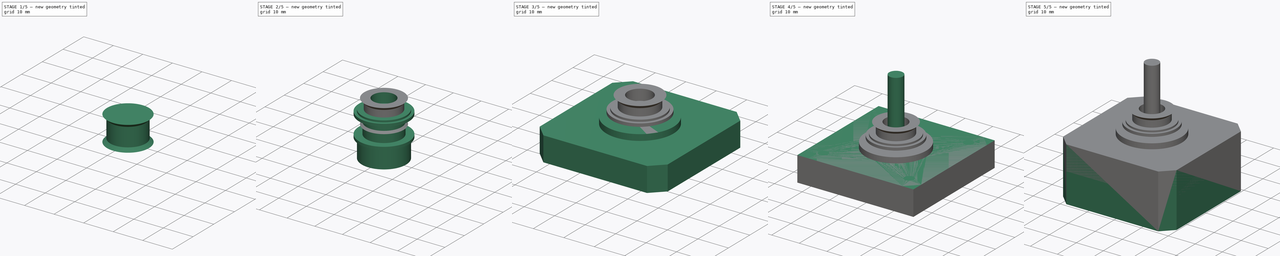
[diagram: build sequence overview — one tinted view per stage of 5, left to right]
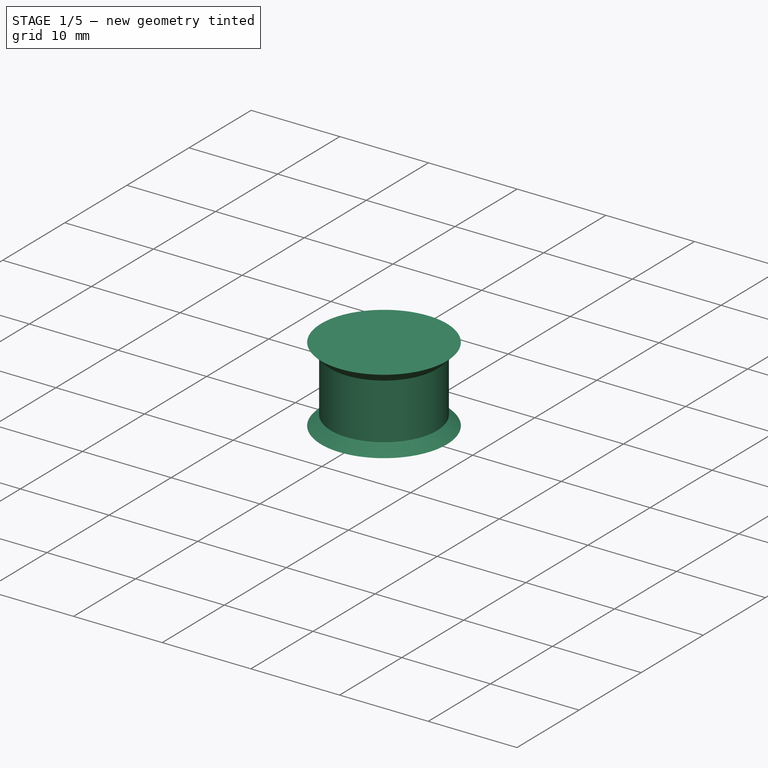
[diagram: stage 1 of 5 — iso view after this stage's code; geometry added in this stage tinted green]
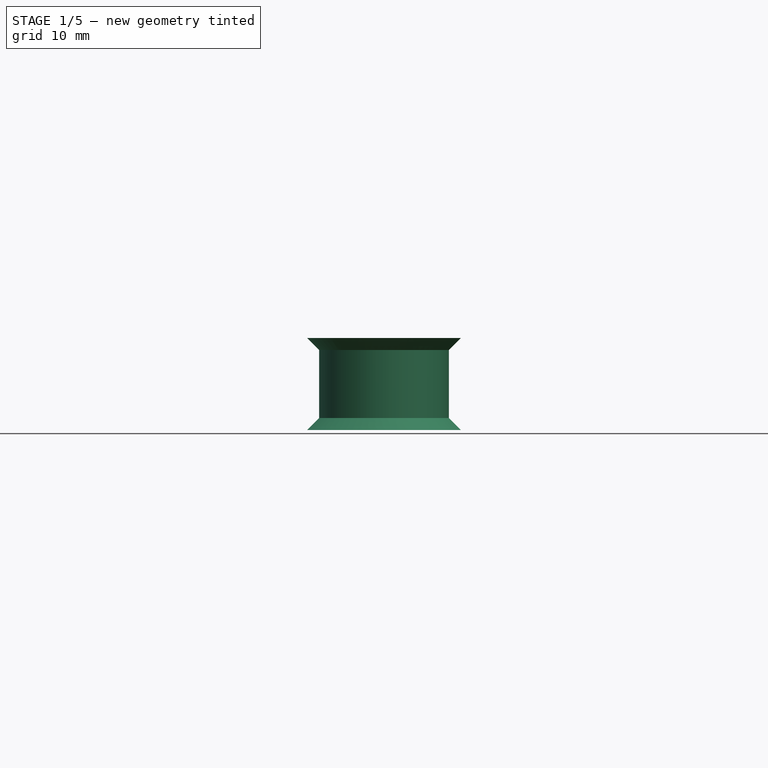
[diagram: stage 1 of 5 — front view after this stage's code; geometry added in this stage tinted green]
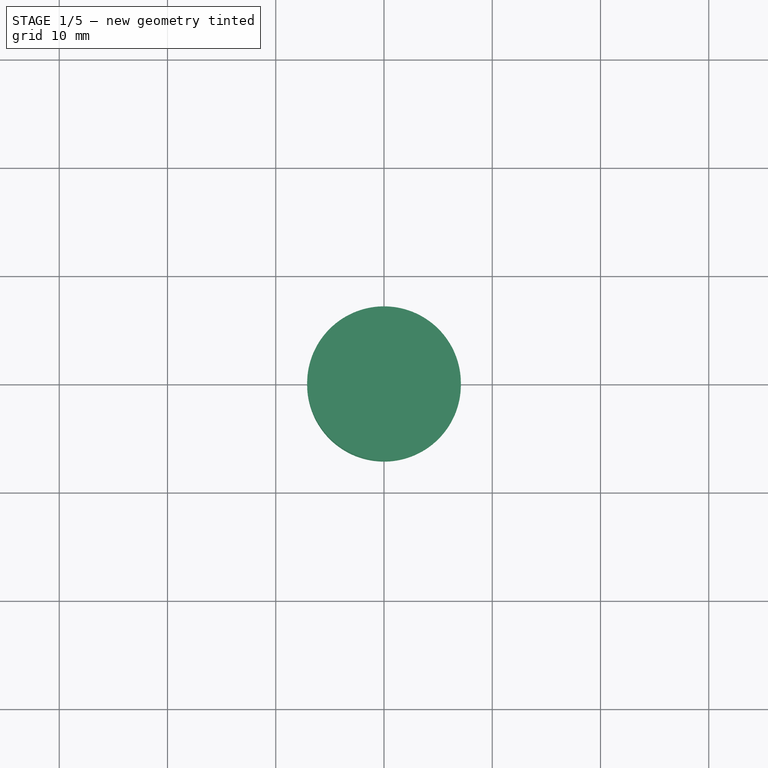
[diagram: stage 1 of 5 — top view after this stage's code; geometry added in this stage tinted green]
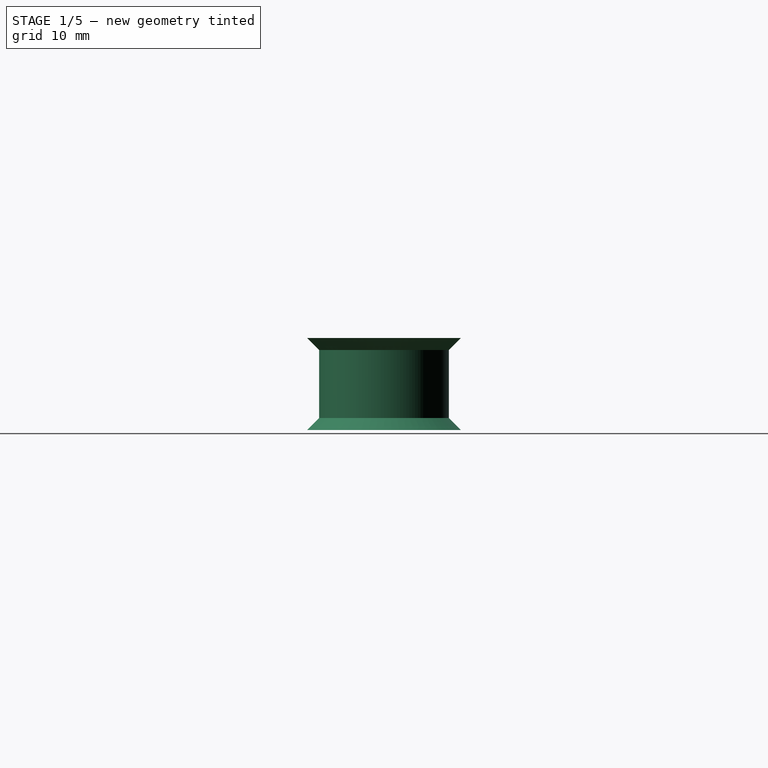
[diagram: stage 1 of 5 — right view after this stage's code; geometry added in this stage tinted green]
FCSTD DOCUMENT  (FreeCAD 0.20R29177 (Git))
Label: Drive
License: All rights reserved
LicenseURL: http://en.wikipedia.org/wiki/All_rights_reserved
objects: PartDesign::Body×7, PartDesign::CoordinateSystem×7, App::Part×4, PartDesign::AdditiveBox×3, PartDesign::Chamfer×3, PartDesign::AdditiveCylinder×3, Sketcher::SketchObject×3, PartDesign::Revolution×2, PartDesign::AdditiveCone×2, PartDesign::Hole×1, PartDesign::SubtractiveCylinder×1
note: 47 computed .brp shape members not serialized (recipe doc carries the construction recipe); baked Part::Feature solids carry a one-line shape summary decoded from their .brp

FEATURE [PartDesign::Body] Body005
  Group = -> [Sketch002,Revolution001]
  Origin = -> Origin008
  Tip = -> Revolution001
FEATURE [PartDesign::CoordinateSystem] LCS_DriveW6T20
  AttacherType = Attacher::AttachEngine3D
  MapMode = 2
  Support = -> [X_Axis007]
FEATURE [App::Part] Part002  label="DriveW6T20"
  Group = -> [Body005,LCS_DriveW6T20]
  Origin = -> Origin007
FEATURE [PartDesign::AdditiveCylinder] Cylinder002
  Angle = 360
  AttacherType = Attacher::AttachEngine3D
  FirstAngle = 0
  Height = 8.5
  MapMode = 5
  Radius = 5.99
  SecondAngle = 0
  Support = -> [XY_Plane010]
FEATURE [PartDesign::AdditiveCone] Cone
  Angle = 360
  AttacherType = Attacher::AttachEngine3D
  BaseFeature = -> Cylinder002
  Height = 2
  MapMode = 5
  Radius1 = 7.1
  Radius2 = 5.1
  Support = -> [XY_Plane010]
FEATURE [PartDesign::AdditiveCone] Cone001
  Angle = 360
  AttacherType = Attacher::AttachEngine3D
  AttachmentOffset = pos=(0,0,-8.5) rot=(0,0,1;0rad)
  BaseFeature = -> Cone
  Height = 2
  MapMode = 5
  Placement = pos=(0,0,8.5) rot=(0,1,0;3.14159rad)
  Radius1 = 7.1
  Radius2 = 5.1
  Support = -> [XY_Plane010]
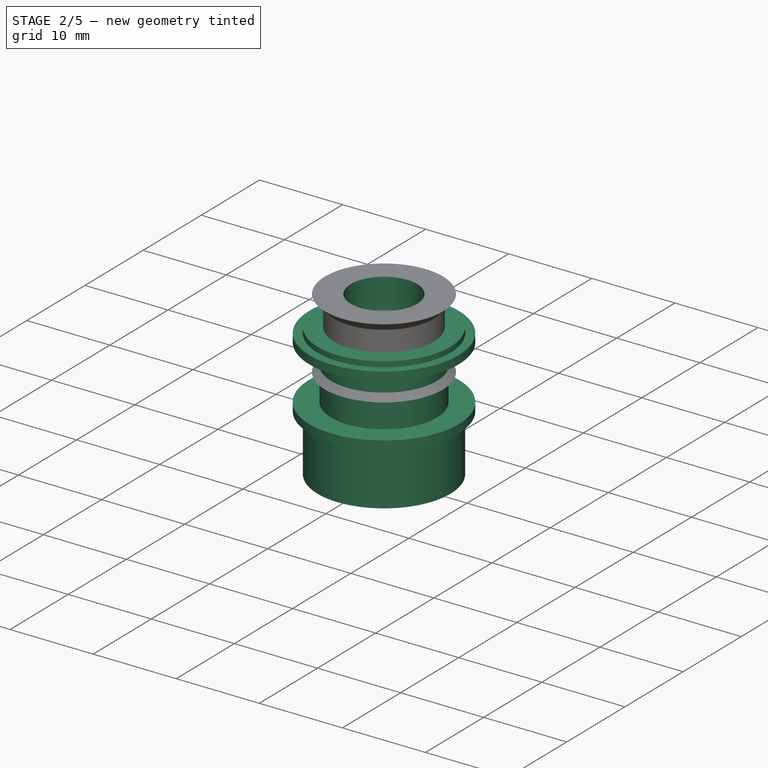
[diagram: stage 2 of 5 — iso view after this stage's code; geometry added in this stage tinted green]
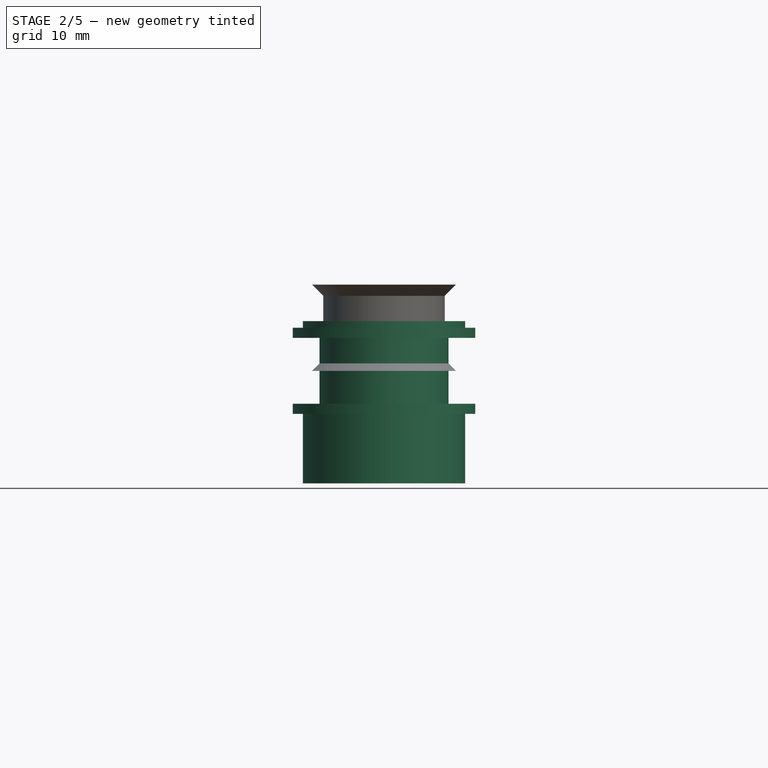
[diagram: stage 2 of 5 — front view after this stage's code; geometry added in this stage tinted green]
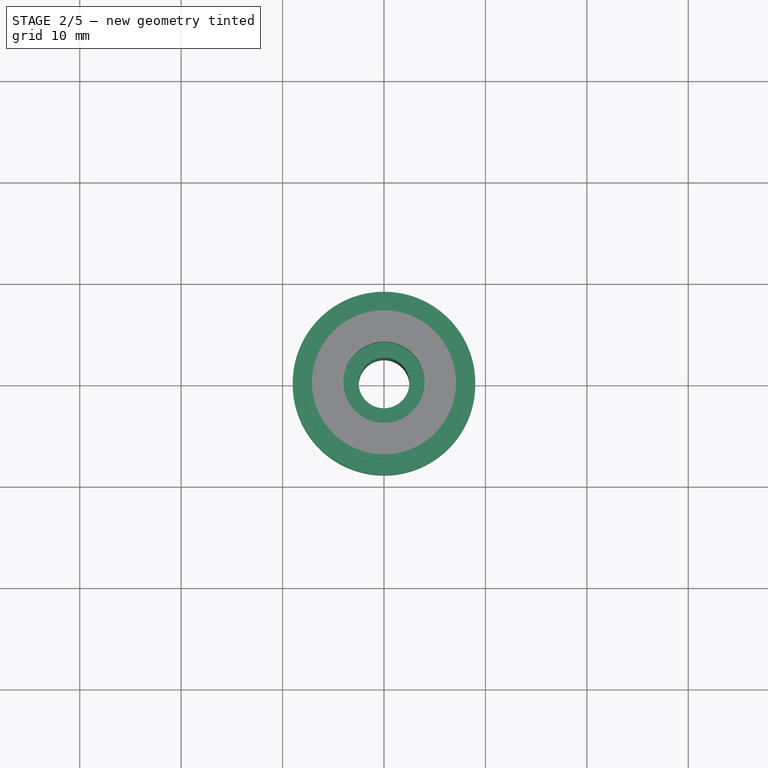
[diagram: stage 2 of 5 — top view after this stage's code; geometry added in this stage tinted green]
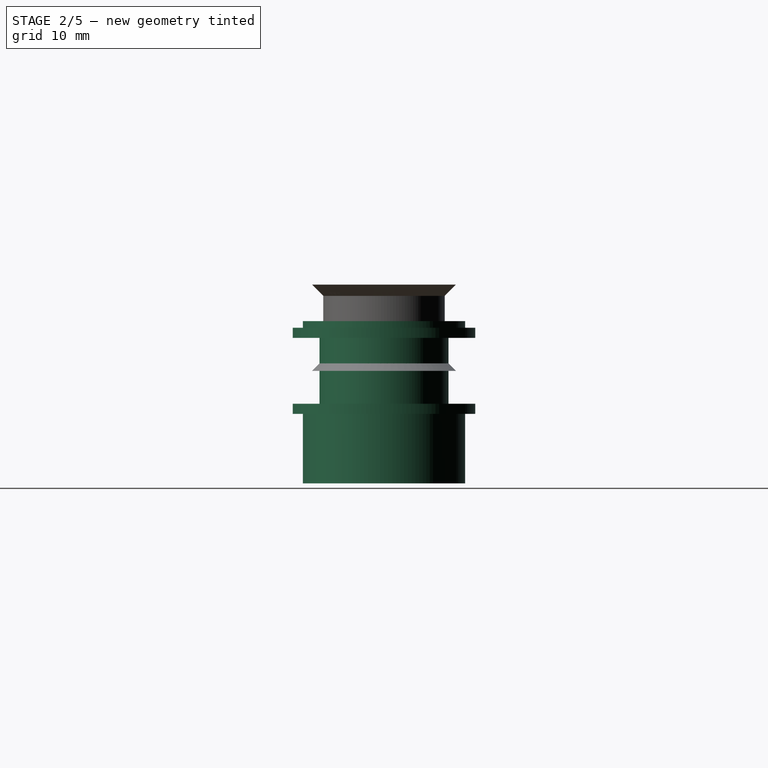
[diagram: stage 2 of 5 — right view after this stage's code; geometry added in this stage tinted green]
FEATURE [PartDesign::Body] Body
  Group = -> [Box,Chamfer,Cylinder,Sketch,Hole]
  Origin = -> Origin001
  Tip = -> Hole
FEATURE [Sketcher::SketchObject] Sketch001
  FullyConstrained = true
  MapMode = 5
  Placement = pos=(0,0,0) rot=(1,0,0;1.5708rad)
  Support = -> [XZ_Plane006]
  sketch-geometry (8):
    g0: LineSegment StartX=2.5 StartY=4.25 StartZ=0 EndX=2.5 EndY=-4.25 EndZ=0
    g1: LineSegment StartX=2.5 StartY=-4.25 StartZ=0 EndX=9 EndY=-4.25 EndZ=0
    g2: LineSegment StartX=9 StartY=-4.25 StartZ=0 EndX=9 EndY=-3.25 EndZ=0
    g3: LineSegment StartX=9 StartY=-3.25 StartZ=0 EndX=6.365 EndY=-3.25 EndZ=0
    g4: LineSegment StartX=6.365 StartY=-3.25 StartZ=0 EndX=6.365 EndY=3.25 EndZ=0
    g5: LineSegment StartX=6.365 StartY=3.25 StartZ=0 EndX=9 EndY=3.25 EndZ=0
    g6: LineSegment StartX=9 StartY=3.25 StartZ=0 EndX=9 EndY=4.25 EndZ=0
    g7: LineSegment StartX=9 StartY=4.25 StartZ=0 EndX=2.5 EndY=4.25 EndZ=0
  constraints (21):
    c: Coincident(g0,g1)
    c: Horizontal(g1)
    c: Coincident(g1,g2)
    c: Coincident(g2,g3)
    c: Coincident(g3,g4)
    c: Coincident(g4,g5)
    c: Horizontal(g5)
    c: Coincident(g5,g6)
    c: Coincident(g6,g7)
    c: Coincident(g7,g0)
    c: Horizontal(g7)
    c: Symmetric(g0,g0,g-1)
    c: Symmetric(g4,g3,g-1)
    c: Vertical(g6)
    c: Vertical(g2)
    c: Symmetric(g2,g5,g-1)
    c: DistanceX(g-1,g4) = 6.365
    c: DistanceX(g-1,g0) = 2.5
    c: DistanceY(g6,g6) = 1
    c: DistanceX(g-1,g6) = 9
    c: DistanceY(g3,g4) = 6.5
FEATURE [PartDesign::Revolution] Revolution
  Angle = 360
  Axis = (0,-2e-16,1)
  Base = (0,0,0)
  Placement = pos=(0,0,0) rot=(1,0,0;1.5708rad)
  Profile = -> Sketch001
  ReferenceAxis = -> Sketch001 [V_Axis]
FEATURE [PartDesign::Body] Body004
  Group = -> [Sketch001,Revolution]
  Origin = -> Origin006
  Tip = -> Revolution
FEATURE [PartDesign::CoordinateSystem] LCS_Nema17_Origin
  AttacherType = Attacher::AttachEngine3D
  MapMode = 2
  Support = -> [X_Axis]
FEATURE [App::Part] Part  label="Nema17"
  Group = -> [Body,Body001,Body002,Body003,LCS_Nema17_Origin]
  Origin = -> Origin
FEATURE [PartDesign::CoordinateSystem] LCS_PullyW6T20_Origin  label="LCS_IdlerW6T20_Origin"
  AttacherType = Attacher::AttachEngine3D
  MapMode = 2
  Support = -> [X_Axis005]
FEATURE [PartDesign::CoordinateSystem] LCS_PullyW6T20_Left  label="LCS_IdlerW6T20_Left"
  AttacherType = Attacher::AttachEngine3D
  AttachmentOffset = pos=(6.365,0,0) rot=(0,0,1;0rad)
  MapMode = 2
  Placement = pos=(6.365,0,0) rot=(0,0,1;0rad)
  Support = -> [LCS_PullyW6T20_Origin]
FEATURE [PartDesign::CoordinateSystem] LCS_PullyW6T20_Right  label="LCS_IdlerW6T20_Right"
  AttacherType = Attacher::AttachEngine3D
  AttachmentOffset = pos=(-6.365,0,0) rot=(0,0,1;0rad)
  MapMode = 2
  Placement = pos=(-6.365,0,0) rot=(0,0,1;0rad)
  Support = -> [LCS_PullyW6T20_Origin]
FEATURE [PartDesign::CoordinateSystem] LCS_PullyW6T20_Front  label="LCS_IdlerW6T20_Front"
  AttacherType = Attacher::AttachEngine3D
  AttachmentOffset = pos=(0,-6.365,0) rot=(0,0,1;0rad)
  MapMode = 2
  Placement = pos=(0,-6.365,0) rot=(0,0,1;0rad)
  Support = -> [LCS_PullyW6T20_Origin]
FEATURE [PartDesign::CoordinateSystem] LCS_PullyW6T20_Rear
  AttacherType = Attacher::AttachEngine3D
  AttachmentOffset = pos=(0,6.365,0) rot=(0,0,1;0rad)
  MapMode = 2
  Placement = pos=(0,6.365,0) rot=(0,0,1;0rad)
  Support = -> [LCS_PullyW6T20_Origin]
FEATURE [App::Part] Part001  label="IdlerW6T20"
  Group = -> [Body004,LCS_PullyW6T20_Origin,LCS_PullyW6T20_Left,LCS_PullyW6T20_Right,LCS_PullyW6T20_Front,LCS_PullyW6T20_Rear]
  Origin = -> Origin005
FEATURE [Sketcher::SketchObject] Sketch002
  FullyConstrained = true
  MapMode = 5
  Placement = pos=(0,0,0) rot=(1,0,0;1.5708rad)
  Support = -> [XZ_Plane008]
  sketch-geometry (8):
    g0: LineSegment StartX=2.5 StartY=4.9 StartZ=0 EndX=2.5 EndY=-11.1 EndZ=0
    g1: LineSegment StartX=2.5 StartY=-11.1 StartZ=0 EndX=8 EndY=-11.1 EndZ=0
    g2: LineSegment StartX=8 StartY=-11.1 StartZ=0 EndX=8 EndY=-3.6 EndZ=0
    g3: LineSegment StartX=8 StartY=-3.6 StartZ=0 EndX=6.365 EndY=-3.6 EndZ=0
    g4: LineSegment StartX=6.365 StartY=-3.6 StartZ=0 EndX=6.365 EndY=3.6 EndZ=0
    g5: LineSegment StartX=6.365 StartY=3.6 StartZ=0 EndX=8 EndY=3.6 EndZ=0
    g6: LineSegment StartX=8 StartY=3.6 StartZ=0 EndX=8 EndY=4.9 EndZ=0
    g7: LineSegment StartX=8 StartY=4.9 StartZ=0 EndX=2.5 EndY=4.9 EndZ=0
  constraints (23):
    c: Vertical(g0)
    c: Coincident(g0,g1)
    c: Coincident(g1,g2)
    c: Vertical(g2)
    c: Coincident(g2,g3)
    c: Coincident(g3,g4)
    c: Coincident(g4,g5)
    c: Horizontal(g5)
    c: Coincident(g5,g6)
    c: Vertical(g6)
    c: Coincident(g6,g7)
    c: Horizontal(g7)
    c: Coincident(g7,g0)
    c: Horizontal(g1)
    c: Horizontal(g3)
    c: DistanceX(g-1,g0) = 2.5
    c: DistanceY(g6,g6) = 1.3
    c: DistanceY(g4,g4) = 7.2
    c: DistanceY(g2,g2) = 7.5
    c: Symmetric(g4,g3,g-1)
    c: DistanceX(g-1,g4) = 6.365
    c: DistanceX(g-1,g1) = 8
    c: DistanceX(g-1,g6) = 8
FEATURE [PartDesign::Revolution] Revolution001
  Angle = 360
  Axis = (0,-2e-16,1)
  Base = (0,0,0)
  Placement = pos=(0,0,0) rot=(1,0,0;1.5708rad)
  Profile = -> Sketch002
  ReferenceAxis = -> Sketch002 [V_Axis]
FEATURE [PartDesign::SubtractiveCylinder] Cylinder003
  Angle = 360
  AttacherType = Attacher::AttachEngine3D
  BaseFeature = -> Cone001
  FirstAngle = 0
  Height = 13
  MapMode = 5
  Radius = 4
  SecondAngle = 0
  Support = -> [XY_Plane010]
FEATURE [PartDesign::Body] Body006
  Group = -> [Cylinder002,Cone,Cone001,Cylinder003]
  Origin = -> Origin010
  Tip = -> Cylinder003
FEATURE [App::Part] Part003  label="Pully2GT20TSmooth"
  Group = -> [Body006]
  Origin = -> Origin009
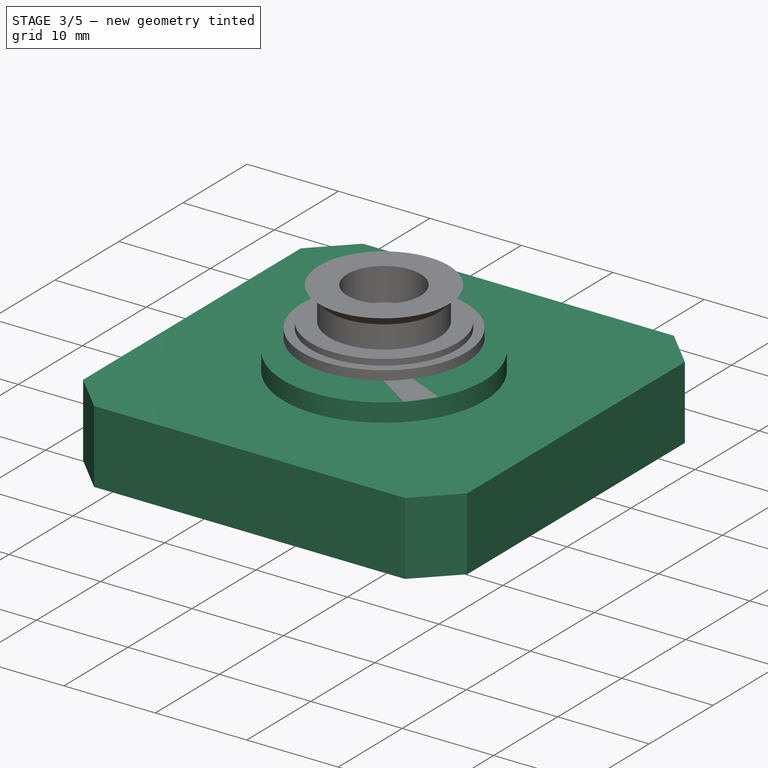
[diagram: stage 3 of 5 — iso view after this stage's code; geometry added in this stage tinted green]
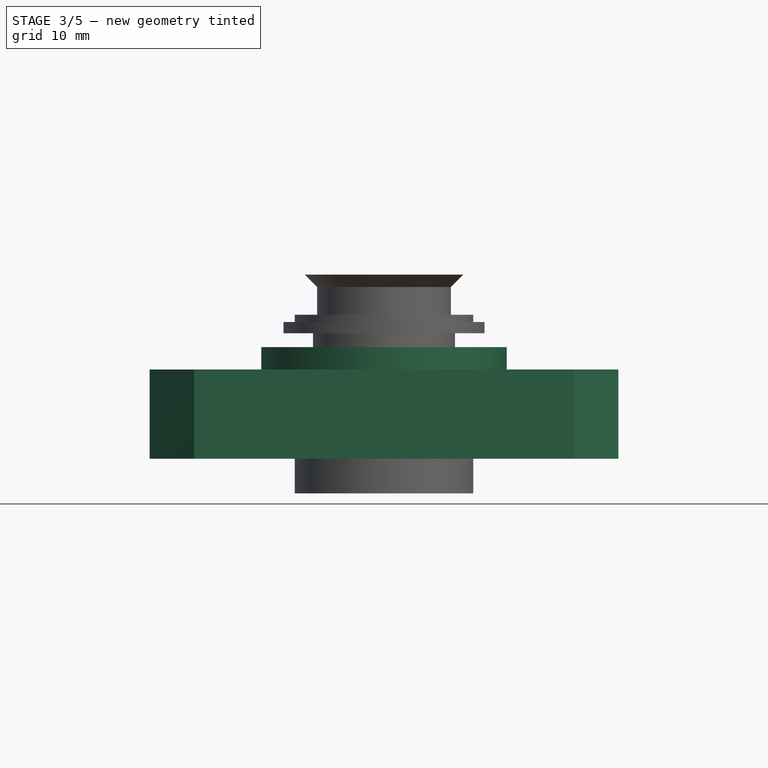
[diagram: stage 3 of 5 — front view after this stage's code; geometry added in this stage tinted green]
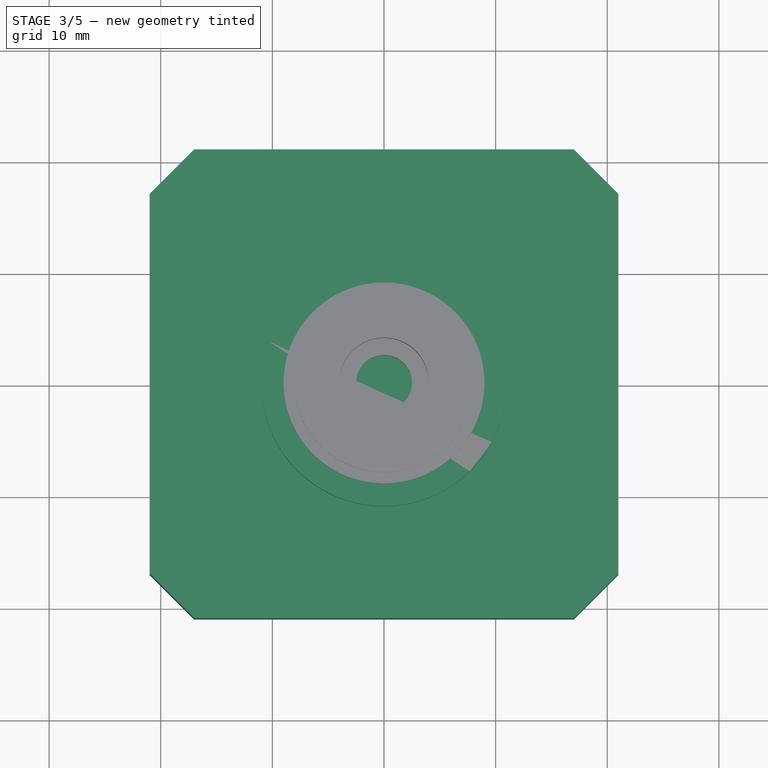
[diagram: stage 3 of 5 — top view after this stage's code; geometry added in this stage tinted green]
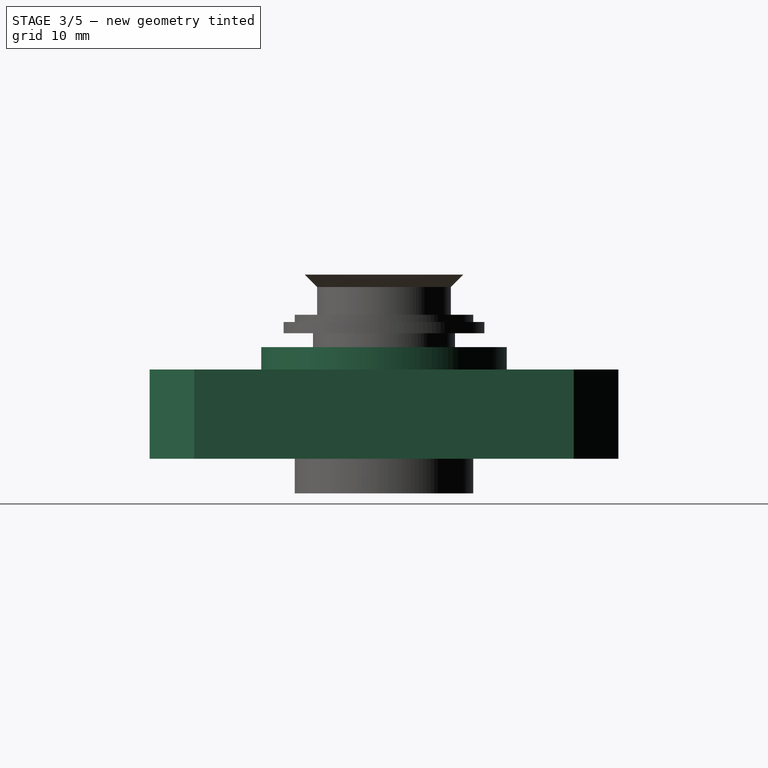
[diagram: stage 3 of 5 — right view after this stage's code; geometry added in this stage tinted green]
FEATURE [PartDesign::AdditiveBox] Box
  AttacherType = Attacher::AttachEngine3D
  AttachmentOffset = pos=(-21,-21,0) rot=(0,0,1;0rad)
  Height = 8
  Length = 42
  MapMode = 2
  Placement = pos=(21,-21,0) rot=(0,1,0;3.14159rad)
  Support = -> [XY_Plane001]
  Width = 42
FEATURE [PartDesign::Chamfer] Chamfer
  Angle = 45
  Base = -> Box [Edge1,Edge3,Edge5,Edge7]
  BaseFeature = -> Box
  ChamferType = 0
  FlipDirection = false
  Placement = pos=(21,-21,0) rot=(0,1,0;3.14159rad)
  Size = 4
  Size2 = 1
  SupportTransform = false
  UseAllEdges = false
FEATURE [PartDesign::Body] Body002
  Group = -> [Box002,Chamfer002]
  Origin = -> Origin003
  Placement = pos=(0,0,-28) rot=(0,0,1;0rad)
  Tip = -> Chamfer002
FEATURE [PartDesign::AdditiveCylinder] Cylinder
  Angle = 360
  AttacherType = Attacher::AttachEngine3D
  BaseFeature = -> Chamfer
  FirstAngle = 0
  Height = 2
  MapMode = 2
  Radius = 11
  SecondAngle = 0
  Support = -> [XY_Plane001]
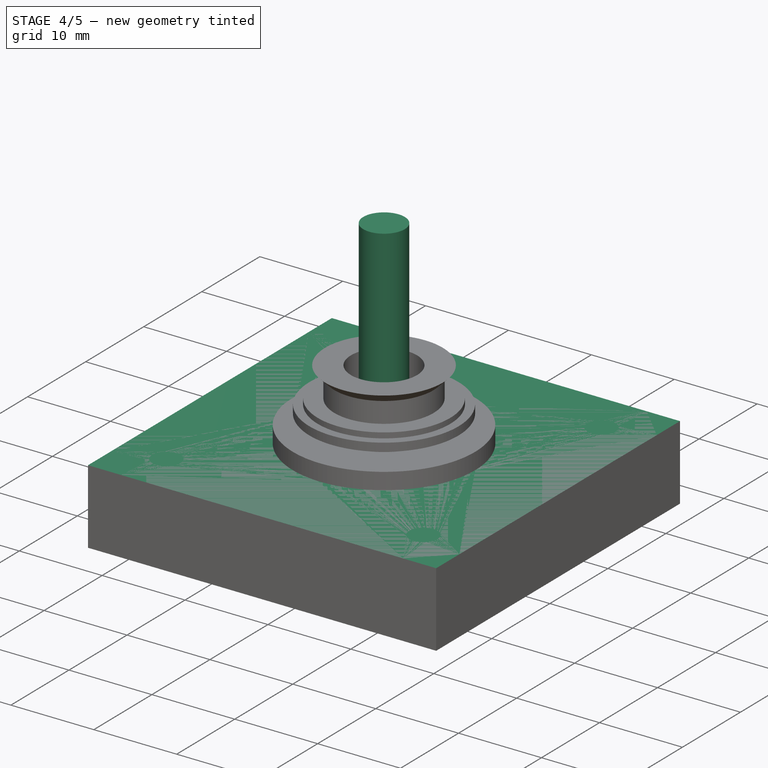
[diagram: stage 4 of 5 — iso view after this stage's code; geometry added in this stage tinted green]
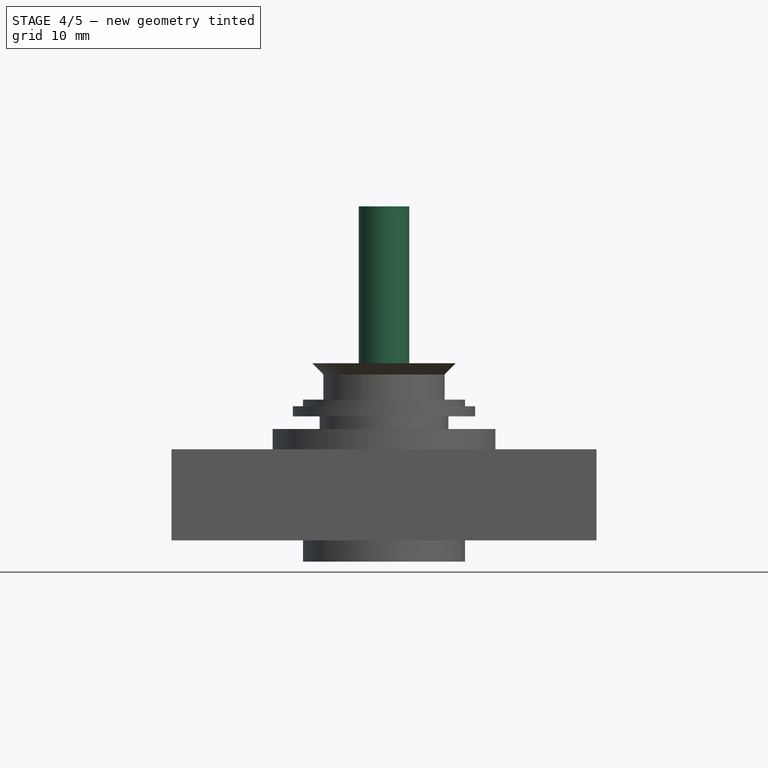
[diagram: stage 4 of 5 — front view after this stage's code; geometry added in this stage tinted green]
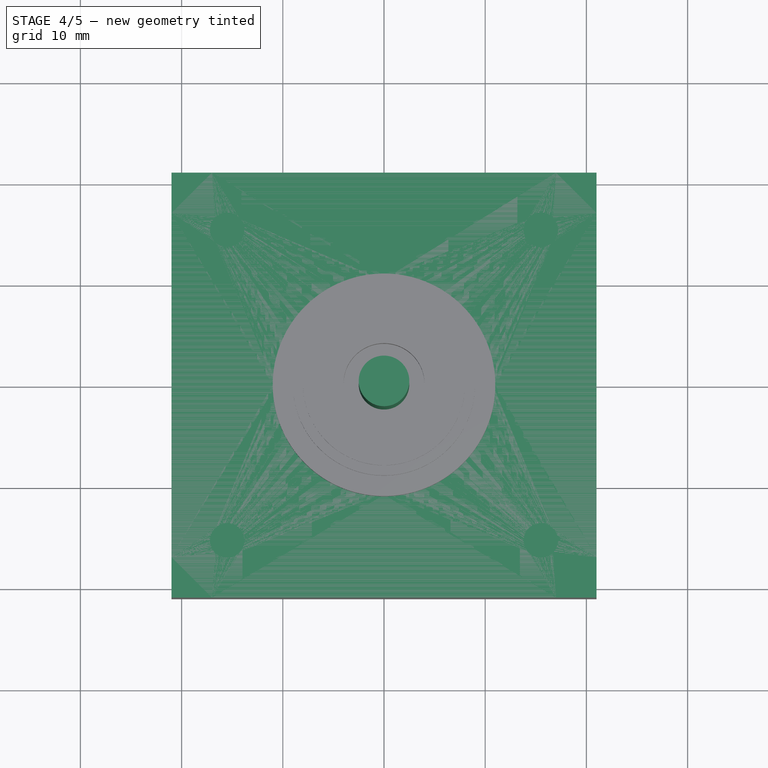
[diagram: stage 4 of 5 — top view after this stage's code; geometry added in this stage tinted green]
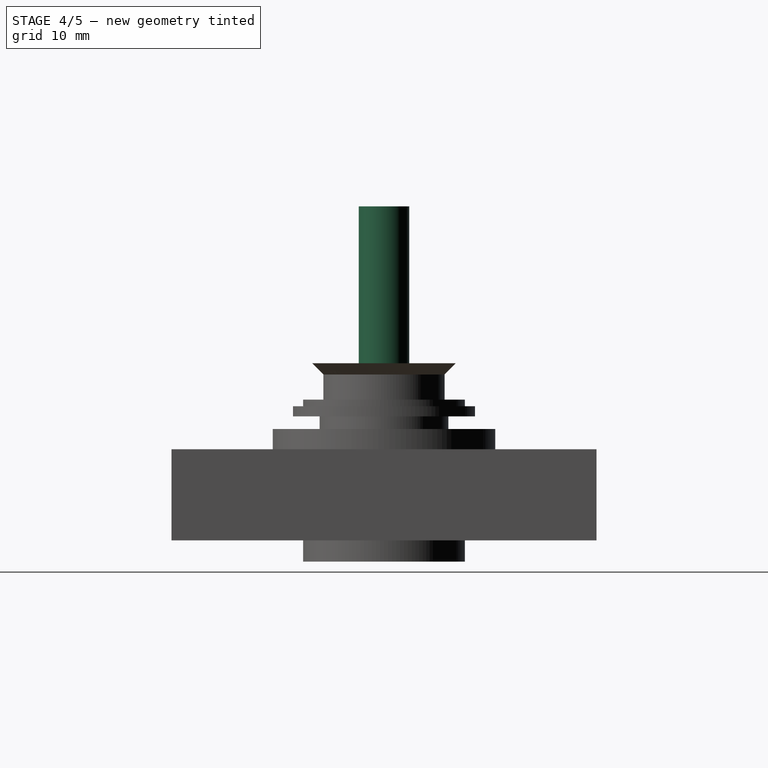
[diagram: stage 4 of 5 — right view after this stage's code; geometry added in this stage tinted green]
FEATURE [PartDesign::Body] Body001
  Group = -> [Box001,Chamfer001]
  Origin = -> Origin002
  Placement = pos=(0,0,-8) rot=(0,0,1;0rad)
  Tip = -> Chamfer001
FEATURE [PartDesign::AdditiveBox] Box002
  AttacherType = Attacher::AttachEngine3D
  AttachmentOffset = pos=(-21,-21,0) rot=(0,0,1;0rad)
  Height = 9
  Length = 42
  MapMode = 5
  Placement = pos=(21,-21,0) rot=(0,1,0;3.14159rad)
  Support = -> [XY_Plane003]
  Width = 42
FEATURE [PartDesign::AdditiveCylinder] Cylinder001
  Angle = 360
  AttacherType = Attacher::AttachEngine3D
  AttachmentOffset = pos=(0,0,2) rot=(0,0,1;0rad)
  FirstAngle = 0
  Height = 22
  MapMode = 5
  Placement = pos=(0,0,2) rot=(0,0,1;0rad)
  Radius = 2.5
  SecondAngle = 0
  Support = -> [XY_Plane004]
FEATURE [PartDesign::Body] Body003
  Group = -> [Cylinder001]
  Origin = -> Origin004
  Tip = -> Cylinder001
FEATURE [Sketcher::SketchObject] Sketch
  FullyConstrained = false
  MapMode = 5
  Support = -> [XY_Plane001]
  sketch-geometry (4):
    g0: Circle CenterX=-15.5 CenterY=15.3491 CenterZ=0 NormalX=0 NormalY=0 NormalZ=1 AngleXU=0 Radius=1.5
    g1: Circle CenterX=15.5 CenterY=15.3491 CenterZ=0 NormalX=0 NormalY=0 NormalZ=1 AngleXU=0 Radius=1.5
    g2: Circle CenterX=-15.5 CenterY=-15.3491 CenterZ=0 NormalX=0 NormalY=0 NormalZ=1 AngleXU=0 Radius=1.5
    g3: Circle CenterX=15.5 CenterY=-15.3491 CenterZ=0 NormalX=0 NormalY=0 NormalZ=1 AngleXU=0 Radius=1.5
  constraints (10):
    c: Horizontal(g0,g1)
    c: Vertical(g0,g2)
    c: Horizontal(g2,g3)
    c: Vertical(g1,g3)
    c: Symmetric(g0,g3,g-1)
    c: Equal(g0,g1)
    c: Equal(g0,g2)
    c: Equal(g0,g3)
    c: Diameter(g0) = 3
    c: DistanceX(g0,g1) = 31
FEATURE [PartDesign::Hole] Hole
  BaseFeature = -> Cylinder
  CustomThreadClearance = 0
  Depth = 5
  DepthType = 0
  Diameter = 3.4
  DrillForDepth = false
  DrillPoint = 1
  DrillPointAngle = 118
  HoleCutCountersinkAngle = 90
  HoleCutCustomValues = false
  HoleCutDepth = 0
  HoleCutDiameter = 6.1
  HoleCutType = 0
  ModelThread = false
  Profile = -> Sketch
  Tapered = false
  TaperedAngle = 90
  ThreadClass = 0
  ThreadDepth = 5
  ThreadDepthType = 0
  ThreadDirection = 0
  ThreadFit = 0
  ThreadSize = 9
  ThreadType = 1
  Threaded = false
  UseCustomThreadClearance = false
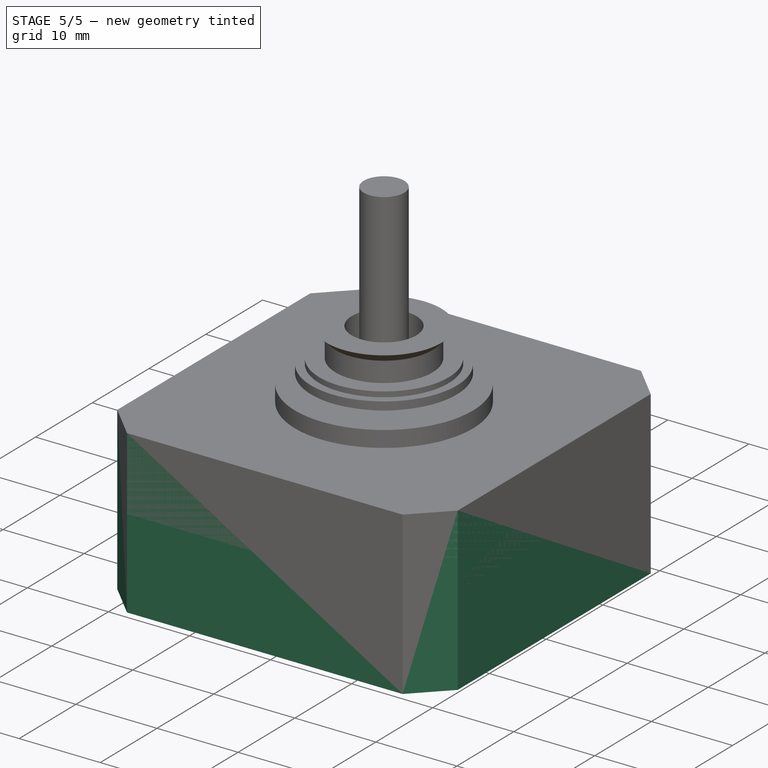
[diagram: stage 5 of 5 — iso view after this stage's code; geometry added in this stage tinted green]
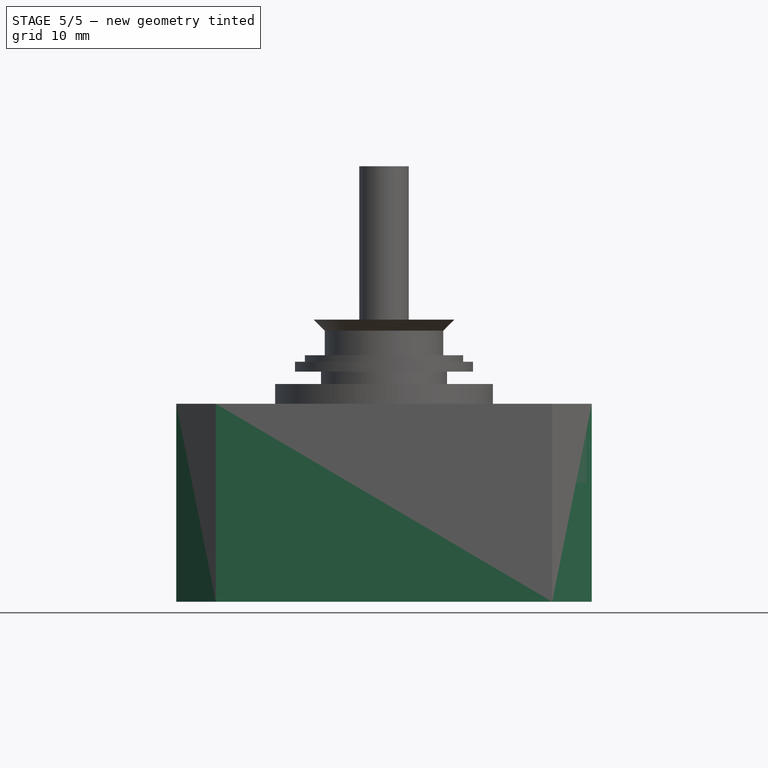
[diagram: stage 5 of 5 — front view after this stage's code; geometry added in this stage tinted green]
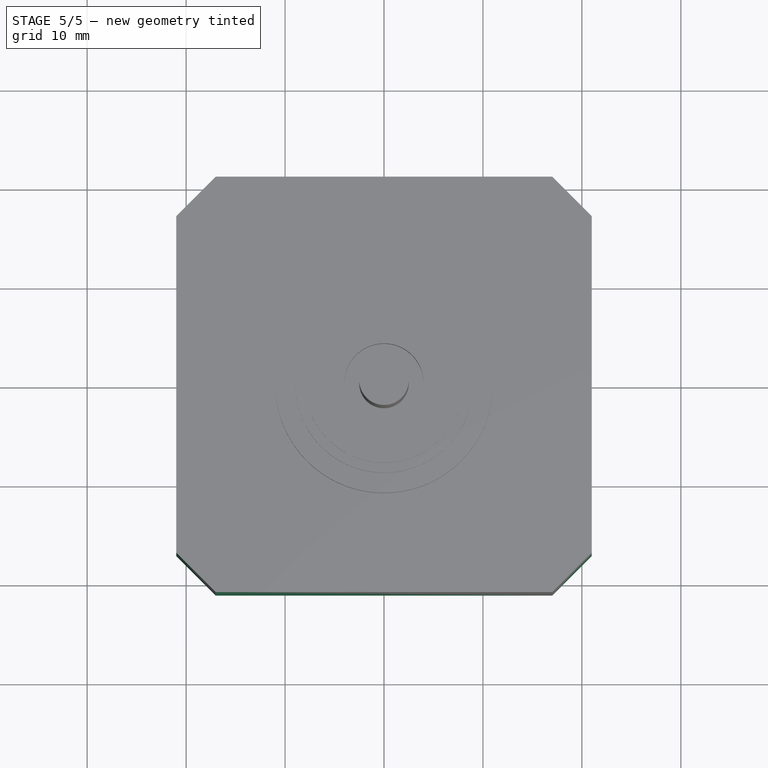
[diagram: stage 5 of 5 — top view after this stage's code; geometry added in this stage tinted green]
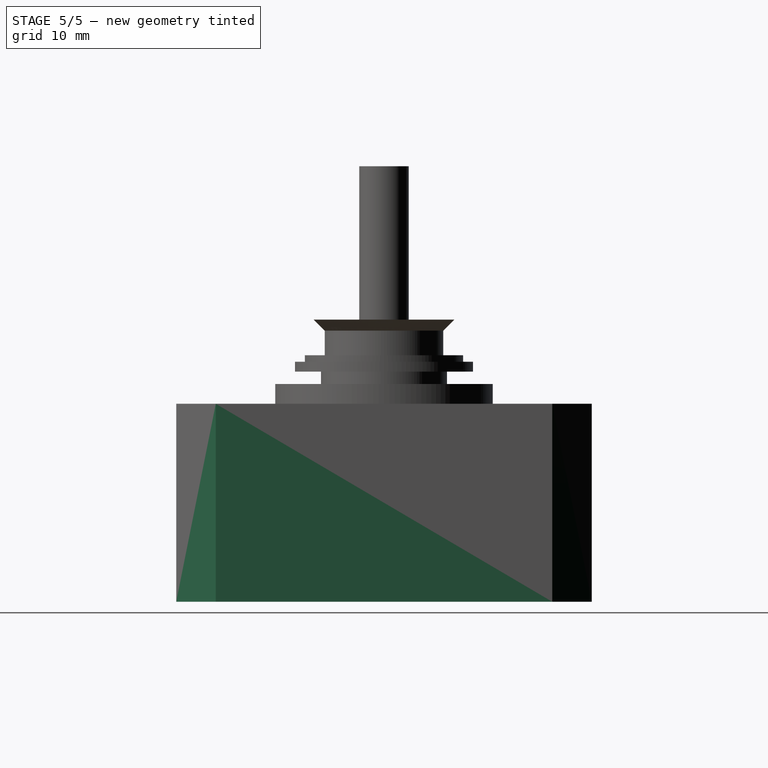
[diagram: stage 5 of 5 — right view after this stage's code; geometry added in this stage tinted green]
FEATURE [PartDesign::AdditiveBox] Box001
  AttacherType = Attacher::AttachEngine3D
  AttachmentOffset = pos=(-21,-21,0) rot=(0,0,1;0rad)
  Height = 20
  Length = 42
  MapMode = 2
  Placement = pos=(21,-21,0) rot=(0,1,0;3.14159rad)
  Support = -> [XY_Plane002]
  Width = 42
FEATURE [PartDesign::Chamfer] Chamfer001
  Angle = 45
  Base = -> Box001 [Edge1,Edge3,Edge5,Edge7]
  BaseFeature = -> Box001
  ChamferType = 0
  FlipDirection = false
  Placement = pos=(21,-21,0) rot=(0,1,0;3.14159rad)
  Size = 4
  Size2 = 1
  SupportTransform = false
  UseAllEdges = false
FEATURE [PartDesign::Chamfer] Chamfer002
  Angle = 45
  Base = -> Box002 [Edge1,Edge3,Edge5,Edge7]
  BaseFeature = -> Box002
  ChamferType = 0
  FlipDirection = false
  Placement = pos=(21,-21,0) rot=(0,1,0;3.14159rad)
  Size = 4
  Size2 = 1
  SupportTransform = false
  UseAllEdges = false
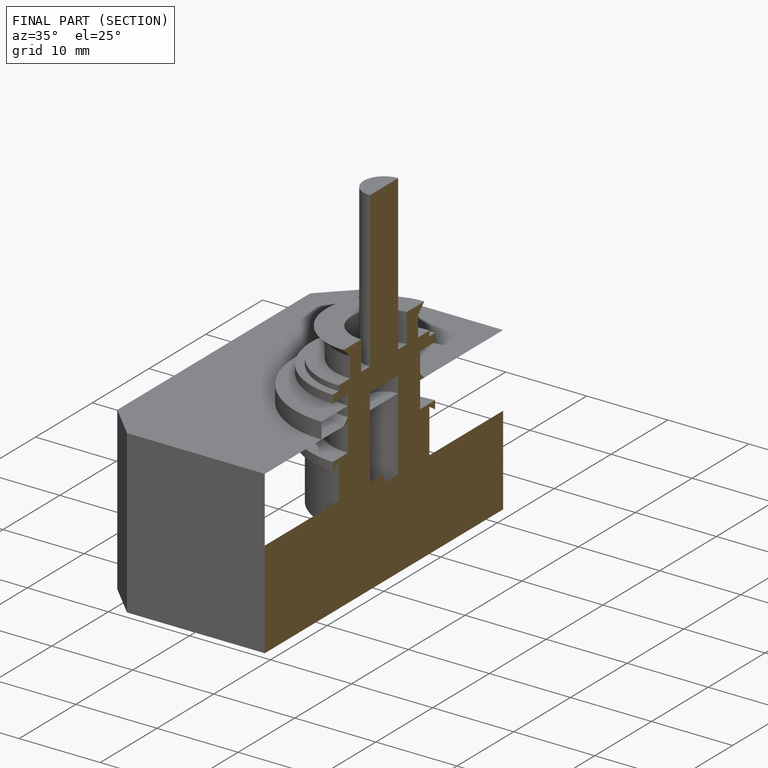
[diagram: finished part — half-section view (interior)]
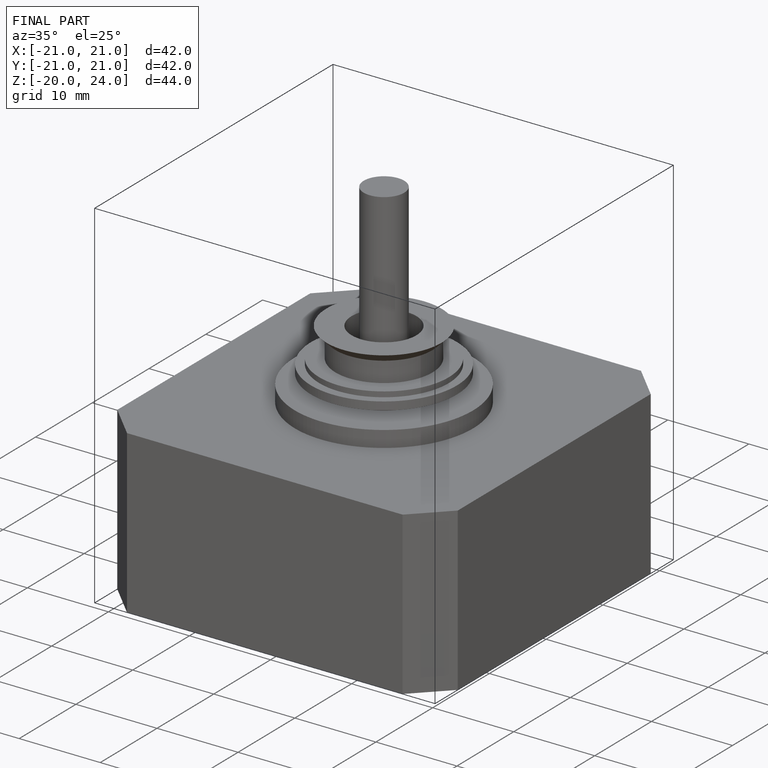
[diagram: finished part — iso view with bounding-box wireframe]
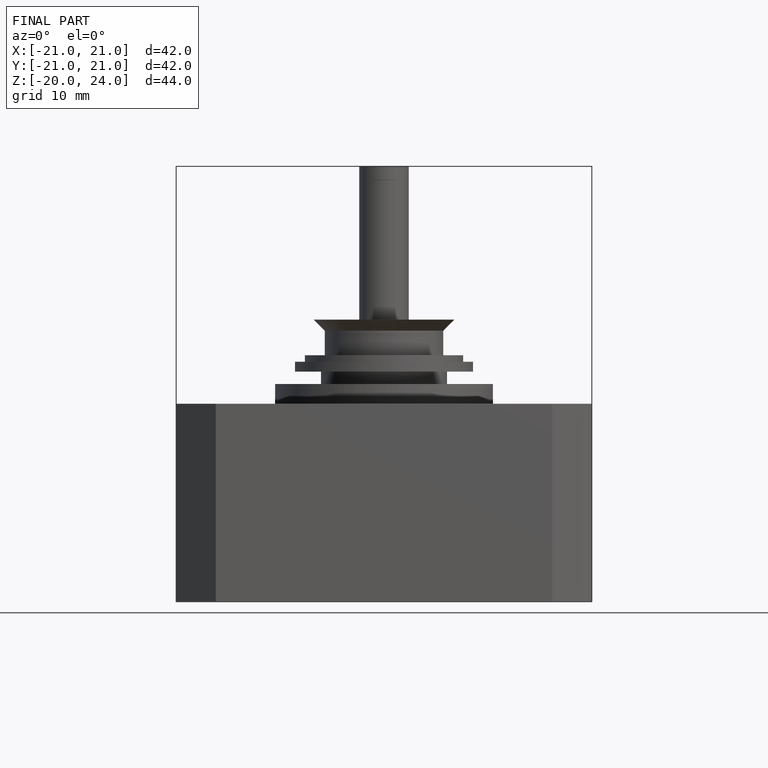
[diagram: finished part — front view with bounding-box wireframe]
